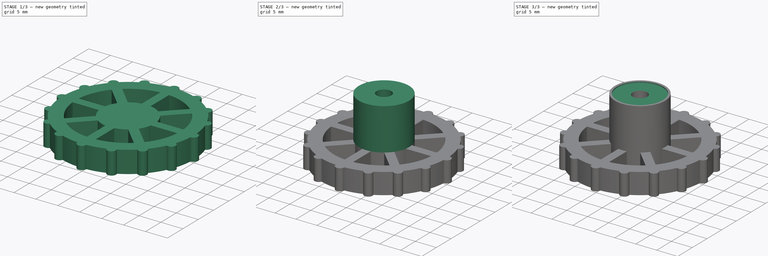
[diagram: build sequence overview — one tinted view per stage of 3, left to right]
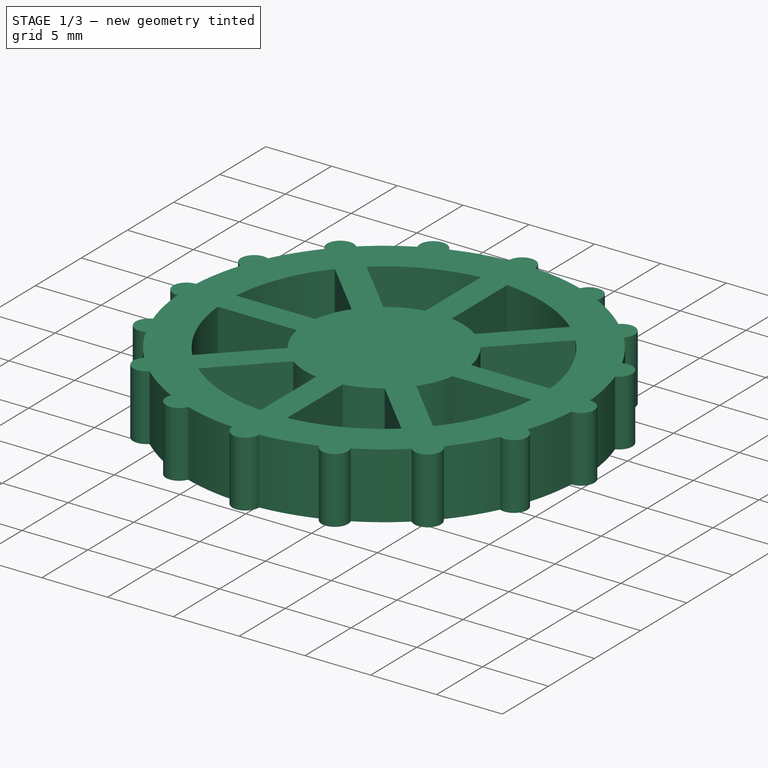
[diagram: stage 1 of 3 — iso view after this stage's code; geometry added in this stage tinted green]
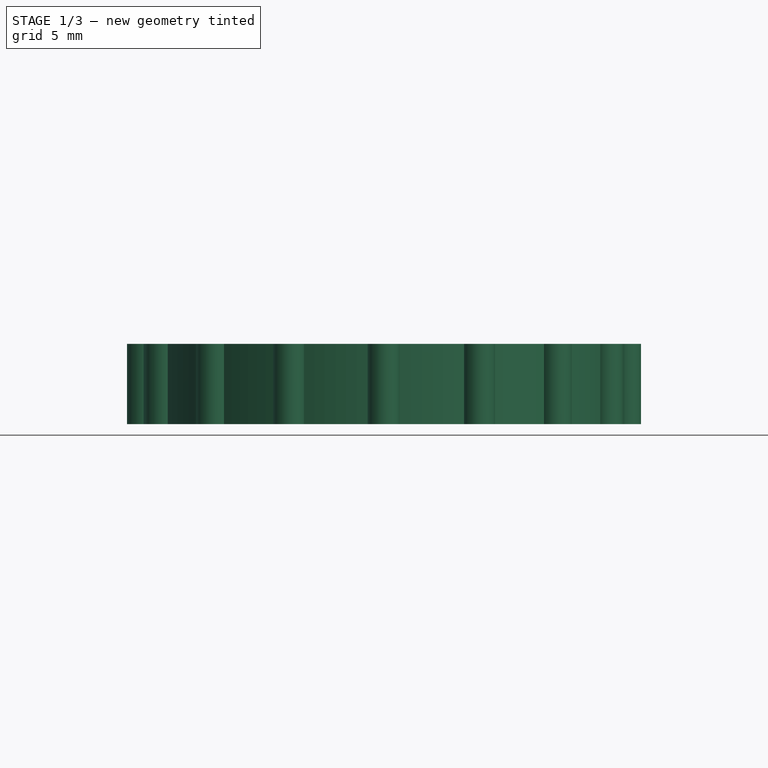
[diagram: stage 1 of 3 — front view after this stage's code; geometry added in this stage tinted green]
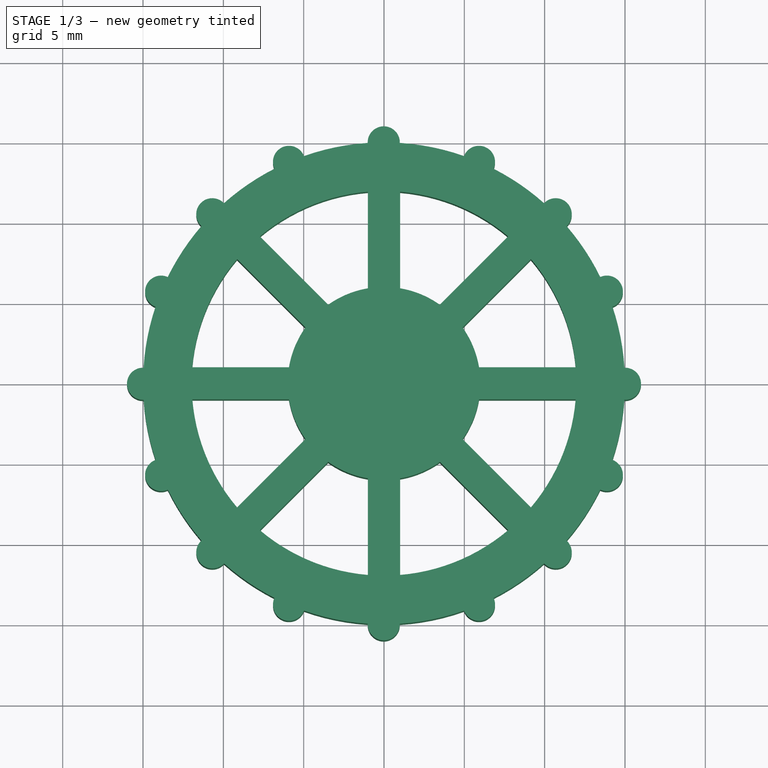
[diagram: stage 1 of 3 — top view after this stage's code; geometry added in this stage tinted green]
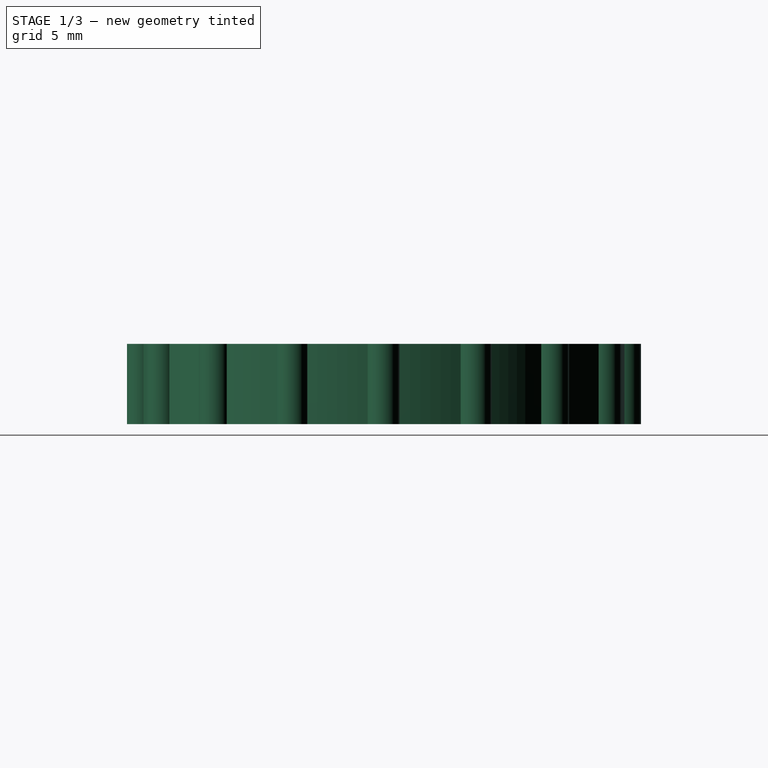
[diagram: stage 1 of 3 — right view after this stage's code; geometry added in this stage tinted green]
FCSTD DOCUMENT  (FreeCAD 0.22R37841 (Git))
Label: Knob
License: All rights reserved
LicenseURL: http://en.wikipedia.org/wiki/All_rights_reserved
objects: Sketcher::SketchObject×7, PartDesign::Pocket×4, PartDesign::Pad×3, Spreadsheet::Sheet×1, PartDesign::Body×1
note: 22 computed .brp shape members not serialized (recipe doc carries the construction recipe); baked Part::Feature solids carry a one-line shape summary decoded from their .brp

FEATURE [Sketcher::SketchObject] Sketch006
  FullyConstrained = false
  sketch-geometry (32):
    g0: ArcOfCircle CenterX=3e-16 CenterY=5e-16 CenterZ=0 NormalX=0 NormalY=0 NormalZ=1 AngleXU=0 Radius=11.9731 StartAngle=2.43981 EndAngle=3.05797
    g1: ArcOfCircle CenterX=3e-16 CenterY=5e-16 CenterZ=0 NormalX=0 NormalY=0 NormalZ=1 AngleXU=0 Radius=11.9731 StartAngle=3.22521 EndAngle=3.84337
    g2: ArcOfCircle CenterX=3e-16 CenterY=5e-16 CenterZ=0 NormalX=0 NormalY=0 NormalZ=1 AngleXU=0 Radius=11.9731 StartAngle=1.65441 EndAngle=2.27258
    g3: ArcOfCircle CenterX=3e-16 CenterY=5e-16 CenterZ=0 NormalX=0 NormalY=0 NormalZ=1 AngleXU=0 Radius=11.9731 StartAngle=0.869016 EndAngle=1.48718
    g4: ArcOfCircle CenterX=3e-16 CenterY=5e-16 CenterZ=0 NormalX=0 NormalY=0 NormalZ=1 AngleXU=0 Radius=11.9731 StartAngle=5.5814 EndAngle=6.19957
    g5: ArcOfCircle CenterX=3e-16 CenterY=5e-16 CenterZ=0 NormalX=0 NormalY=0 NormalZ=1 AngleXU=0 Radius=11.9731 StartAngle=4.79601 EndAngle=5.41417
    g6: ArcOfCircle CenterX=3e-16 CenterY=5e-16 CenterZ=0 NormalX=0 NormalY=0 NormalZ=1 AngleXU=0 Radius=11.9731 StartAngle=4.01061 EndAngle=4.62877
    g7: ArcOfCircle CenterX=3e-16 CenterY=5e-16 CenterZ=0 NormalX=0 NormalY=0 NormalZ=1 AngleXU=0 Radius=11.9731 StartAngle=0.0836178 EndAngle=0.70178
    g8: ArcOfCircle CenterX=3e-16 CenterY=5e-16 CenterZ=0 NormalX=0 NormalY=0 NormalZ=1 AngleXU=0 Radius=6 StartAngle=2.52364 EndAngle=2.97414
    g9: LineSegment StartX=-9.1438 StartY=7.72959 StartZ=0 EndX=-4.89041 EndY=3.4762 EndZ=0
    g10: LineSegment StartX=-7.72958 StartY=9.1438 StartZ=0 EndX=-3.47619 EndY=4.89041 EndZ=0
    g11: LineSegment StartX=-1 StartY=11.9313 StartZ=0 EndX=-1 EndY=5.91608 EndZ=0
    g12: LineSegment StartX=1 StartY=11.9313 StartZ=0 EndX=1 EndY=5.91608 EndZ=0
    g13: LineSegment StartX=7.72959 StartY=9.1438 StartZ=0 EndX=3.47619 EndY=4.89041 EndZ=0
    g14: LineSegment StartX=9.1438 StartY=7.72959 StartZ=0 EndX=4.89041 EndY=3.47619 EndZ=0
    g15: LineSegment StartX=11.9313 StartY=1 StartZ=0 EndX=5.91608 EndY=1 EndZ=0
    g16: LineSegment StartX=11.9313 StartY=-1 StartZ=0 EndX=5.91608 EndY=-1 EndZ=0
    g17: LineSegment StartX=-5.91608 StartY=1 StartZ=0 EndX=-11.9313 EndY=1 EndZ=0
    g18: LineSegment StartX=-5.91608 StartY=-1 StartZ=0 EndX=-11.9313 EndY=-1 EndZ=0
    g19: LineSegment StartX=-4.89041 StartY=-3.47619 StartZ=0 EndX=-9.1438 EndY=-7.72959 EndZ=0
    g20: LineSegment StartX=-3.47619 StartY=-4.89041 StartZ=0 EndX=-7.72959 EndY=-9.1438 EndZ=0
    g21: LineSegment StartX=-1 StartY=-5.91608 StartZ=0 EndX=-1 EndY=-11.9313 EndZ=0
    g22: LineSegment StartX=1 StartY=-5.91608 StartZ=0 EndX=1 EndY=-11.9313 EndZ=0
    g23: LineSegment StartX=3.47619 StartY=-4.89041 StartZ=0 EndX=7.72958 EndY=-9.1438 EndZ=0
    g24: LineSegment StartX=4.89041 StartY=-3.4762 StartZ=0 EndX=9.1438 EndY=-7.72959 EndZ=0
    g25: ArcOfCircle CenterX=3e-16 CenterY=5e-16 CenterZ=0 NormalX=0 NormalY=0 NormalZ=1 AngleXU=0 Radius=6 StartAngle=3.30904 EndAngle=3.75954
    g26: ArcOfCircle CenterX=3e-16 CenterY=5e-16 CenterZ=0 NormalX=0 NormalY=0 NormalZ=1 AngleXU=0 Radius=6 StartAngle=4.09444 EndAngle=4.54494
    g27: ArcOfCircle CenterX=3e-16 CenterY=5e-16 CenterZ=0 NormalX=0 NormalY=0 NormalZ=1 AngleXU=0 Radius=6 StartAngle=4.87984 EndAngle=5.33034
    g28: ArcOfCircle CenterX=3e-16 CenterY=5e-16 CenterZ=0 NormalX=0 NormalY=0 NormalZ=1 AngleXU=0 Radius=6 StartAngle=5.66523 EndAngle=6.11574
    g29: ArcOfCircle CenterX=3e-16 CenterY=5e-16 CenterZ=0 NormalX=0 NormalY=0 NormalZ=1 AngleXU=0 Radius=6 StartAngle=0.167448 EndAngle=0.61795
    g30: ArcOfCircle CenterX=3e-16 CenterY=5e-16 CenterZ=0 NormalX=0 NormalY=0 NormalZ=1 AngleXU=0 Radius=6 StartAngle=1.73824 EndAngle=2.18875
    g31: ArcOfCircle CenterX=3e-16 CenterY=5e-16 CenterZ=0 NormalX=0 NormalY=0 NormalZ=1 AngleXU=0 Radius=6 StartAngle=0.952846 EndAngle=1.40335
  constraints (59):
    c: Equal(g0,g1)
    c: Equal(g1, g2-g6) x5
    c: Equal(g4,g7)
    c: Diameter(g8) = 12
    c: Coincident(g9,g0)
    c: Coincident(g23,g5)
    c: Coincident(g10,g2)
    c: Coincident(g24,g4)
    c: Coincident(g11,g2)
    c: Coincident(g21,g6)
    c: Vertical(g11)
    c: Coincident(g12,g3)
    c: Coincident(g22,g5)
    c: Vertical(g12)
    c: Coincident(g13,g3)
    c: Coincident(g19,g1)
    c: Coincident(g14,g7)
    c: Coincident(g20,g6)
    c: Coincident(g15,g7)
    c: Coincident(g17,g0)
    c: Horizontal(g15)
    c: Coincident(g16,g4)
    c: Coincident(g18,g1)
    c: Horizontal(g16)
    c: PointOnObject(g19,g8)
    c: PointOnObject(g20,g8)
    c: PointOnObject(g21,g8)
    c: PointOnObject(g22,g8)
    c: PointOnObject(g23,g8)
    c: PointOnObject(g24,g8)
    c: PointOnObject(g16,g8)
    c: PointOnObject(g15,g8)
    c: PointOnObject(g14,g8)
    c: PointOnObject(g13,g8)
    c: PointOnObject(g12,g8)
    c: PointOnObject(g11,g8)
    c: Coincident(g30,g10)
    c: Coincident(g8,g9)
    c: Equal(g8,g25)
    c: Coincident(g8,g17)
    c: Coincident(g25,g18)
    c: Equal(g25,g26)
    c: PointOnObject(g25,g19)
    c: PointOnObject(g26,g20)
    c: Equal(g26,g27)
    c: PointOnObject(g26,g21)
    c: PointOnObject(g27,g22)
    c: Equal(g27,g28)
    c: PointOnObject(g27,g23)
    c: PointOnObject(g28,g24)
    c: Equal(g28,g29)
    c: PointOnObject(g28,g16)
    c: PointOnObject(g29,g15)
    c: Equal(g29,g30)
    c: PointOnObject(g31,g12)
    c: PointOnObject(g30,g11)
    c: Equal(g29,g31)
    c: PointOnObject(g29,g14)
    c: PointOnObject(g31,g13)
FEATURE [Sketcher::SketchObject] Sketch002
  ExternalGeometry = -> [Sketch006]
  FullyConstrained = false
  MapMode = 5
  Placement = pos=(0,0,0) rot=(1,0,0;3.14159rad)
  sketch-geometry (32):
    g0: ArcOfCircle CenterX=0 CenterY=0 CenterZ=0 NormalX=0 NormalY=0 NormalZ=1 AngleXU=0 Radius=15 StartAngle=2.04269 EndAngle=2.29721
    g1: ArcOfCircle CenterX=-10.6878 CenterY=10.5247 CenterZ=0 NormalX=0 NormalY=0 NormalZ=1 AngleXU=0 Radius=1 StartAngle=0.759748 EndAngle=3.96802
    g2: ArcOfCircle CenterX=-0.015636 CenterY=15 CenterZ=0 NormalX=0 NormalY=0 NormalZ=1 AngleXU=0 Radius=1 StartAngle=6.25089 EndAngle=9.45916
    g3: ArcOfCircle CenterX=-15 CenterY=0.027811 CenterZ=0 NormalX=0 NormalY=0 NormalZ=1 AngleXU=0 Radius=1 StartAngle=1.5356 EndAngle=4.74387
    g4: ArcOfCircle CenterX=-13.8723 CenterY=5.70615 CenterZ=0 NormalX=0 NormalY=0 NormalZ=1 AngleXU=0 Radius=1 StartAngle=1.14722 EndAngle=4.35549
    g5: ArcOfCircle CenterX=-5.91322 CenterY=13.7853 CenterZ=0 NormalX=0 NormalY=0 NormalZ=1 AngleXU=0 Radius=1 StartAngle=0.371873 EndAngle=3.58014
    g6: ArcOfCircle CenterX=-5.91322 CenterY=-13.7853 CenterZ=0 NormalX=0 NormalY=0 NormalZ=1 AngleXU=0 Radius=1 StartAngle=2.70304 EndAngle=5.91131
    g7: ArcOfCircle CenterX=5.91322 CenterY=13.7853 CenterZ=0 NormalX=0 NormalY=0 NormalZ=1 AngleXU=0 Radius=1 StartAngle=5.84463 EndAngle=9.0529
    g8: ArcOfCircle CenterX=10.6878 CenterY=10.5247 CenterZ=0 NormalX=0 NormalY=0 NormalZ=1 AngleXU=0 Radius=1 StartAngle=5.45676 EndAngle=8.66503
    g9: ArcOfCircle CenterX=13.8723 CenterY=5.70615 CenterZ=0 NormalX=0 NormalY=0 NormalZ=1 AngleXU=0 Radius=1 StartAngle=5.06929 EndAngle=8.27756
    g10: ArcOfCircle CenterX=5.91322 CenterY=-13.7853 CenterZ=0 NormalX=0 NormalY=0 NormalZ=1 AngleXU=0 Radius=1 StartAngle=3.51347 EndAngle=6.72174
    g11: ArcOfCircle CenterX=10.6878 CenterY=-10.5247 CenterZ=0 NormalX=0 NormalY=0 NormalZ=1 AngleXU=0 Radius=1 StartAngle=3.90134 EndAngle=7.10961
    g12: ArcOfCircle CenterX=13.8723 CenterY=-5.70615 CenterZ=0 NormalX=0 NormalY=0 NormalZ=1 AngleXU=0 Radius=1 StartAngle=4.28881 EndAngle=7.49708
    g13: ArcOfCircle CenterX=-0.015636 CenterY=-15 CenterZ=0 NormalX=0 NormalY=0 NormalZ=1 AngleXU=0 Radius=1 StartAngle=3.10721 EndAngle=6.31548
    g14: ArcOfCircle CenterX=15 CenterY=0.027811 CenterZ=0 NormalX=0 NormalY=0 NormalZ=1 AngleXU=0 Radius=1 StartAngle=4.6809 EndAngle=7.88917
    g15: ArcOfCircle CenterX=-13.8723 CenterY=-5.70615 CenterZ=0 NormalX=0 NormalY=0 NormalZ=1 AngleXU=0 Radius=1 StartAngle=1.9277 EndAngle=5.13597
    g16: ArcOfCircle CenterX=-10.6878 CenterY=-10.5247 CenterZ=0 NormalX=0 NormalY=0 NormalZ=1 AngleXU=0 Radius=1 StartAngle=2.31517 EndAngle=5.52344
    g17: ArcOfCircle CenterX=0 CenterY=0 CenterZ=0 NormalX=0 NormalY=0 NormalZ=1 AngleXU=0 Radius=15 StartAngle=2.43056 EndAngle=2.68467
    g18: ArcOfCircle CenterX=0 CenterY=0 CenterZ=0 NormalX=0 NormalY=0 NormalZ=1 AngleXU=0 Radius=15 StartAngle=1.63852 EndAngle=1.90933
    g19: ArcOfCircle CenterX=0 CenterY=0 CenterZ=0 NormalX=0 NormalY=0 NormalZ=1 AngleXU=0 Radius=15 StartAngle=1.23226 EndAngle=1.50516
    g20: ArcOfCircle CenterX=0 CenterY=0 CenterZ=0 NormalX=0 NormalY=0 NormalZ=1 AngleXU=0 Radius=15 StartAngle=0.844388 EndAngle=1.0989
    g21: ArcOfCircle CenterX=0 CenterY=0 CenterZ=0 NormalX=0 NormalY=0 NormalZ=1 AngleXU=0 Radius=15 StartAngle=0.456918 EndAngle=0.71103
    g22: ArcOfCircle CenterX=0 CenterY=0 CenterZ=0 NormalX=0 NormalY=0 NormalZ=1 AngleXU=0 Radius=15 StartAngle=0.0685331 EndAngle=0.32356
    g23: ArcOfCircle CenterX=0 CenterY=0 CenterZ=0 NormalX=0 NormalY=0 NormalZ=1 AngleXU=0 Radius=15 StartAngle=5.95962 EndAngle=6.21836
    g24: ArcOfCircle CenterX=0 CenterY=0 CenterZ=0 NormalX=0 NormalY=0 NormalZ=1 AngleXU=0 Radius=15 StartAngle=5.57216 EndAngle=5.82627
    g25: ArcOfCircle CenterX=0 CenterY=0 CenterZ=0 NormalX=0 NormalY=0 NormalZ=1 AngleXU=0 Radius=15 StartAngle=5.18428 EndAngle=5.4388
    g26: ArcOfCircle CenterX=0 CenterY=0 CenterZ=0 NormalX=0 NormalY=0 NormalZ=1 AngleXU=0 Radius=15 StartAngle=4.77803 EndAngle=5.05092
    g27: ArcOfCircle CenterX=0 CenterY=0 CenterZ=0 NormalX=0 NormalY=0 NormalZ=1 AngleXU=0 Radius=15 StartAngle=4.37386 EndAngle=4.64467
    g28: ArcOfCircle CenterX=0 CenterY=0 CenterZ=0 NormalX=0 NormalY=0 NormalZ=1 AngleXU=0 Radius=15 StartAngle=3.98598 EndAngle=4.2405
    g29: ArcOfCircle CenterX=0 CenterY=0 CenterZ=0 NormalX=0 NormalY=0 NormalZ=1 AngleXU=0 Radius=15 StartAngle=3.59851 EndAngle=3.85262
    g30: ArcOfCircle CenterX=0 CenterY=0 CenterZ=0 NormalX=0 NormalY=0 NormalZ=1 AngleXU=0 Radius=15 StartAngle=3.20642 EndAngle=3.46515
    g31: ArcOfCircle CenterX=0 CenterY=0 CenterZ=0 NormalX=0 NormalY=0 NormalZ=1 AngleXU=0 Radius=15 StartAngle=2.81803 EndAngle=3.07306
  constraints (78):
    c: Diameter(g0) = 30
    c: Coincident(g0,g-1)
    c: PointOnObject(g1,g0)
    c: Diameter(g1) = 2
    c: Diameter(g2) = 2
    c: Diameter(g3) = 2
    c: PointOnObject(g4,g0)
    c: Diameter(g4) = 2
    c: Diameter(g8) = 2
    c: Diameter(g9) = 2
    c: Diameter(g11) = 2
    c: Diameter(g12) = 2
    c: Diameter(g13) = 2
    c: Diameter(g14) = 2
    c: Diameter(g16) = 2
    c: Diameter(g15) = 2
    c: Coincident(g5,g0)
    c: Coincident(g5,g18)
    c: Equal(g0,g17)
    c: Coincident(g0,g17)
    c: Coincident(g1,g17)
    c: Coincident(g1,g0)
    c: Equal(g17,g18)
    c: Coincident(g17,g18)
    c: Coincident(g2,g18)
    c: Coincident(g2,g19)
    c: Equal(g17,g19)
    c: Coincident(g20,g7)
    c: Coincident(g19,g7)
    c: Coincident(g17,g19)
    c: Equal(g17,g20)
    c: Coincident(g17,g20)
    c: Coincident(g8,g20)
    c: Coincident(g8,g21)
    c: Equal(g17,g21)
    c: Coincident(g22,g9)
    c: Coincident(g21,g9)
    c: Coincident(g17,g21)
    c: Equal(g17,g22)
    c: Coincident(g23,g14)
    c: Coincident(g22,g14)
    c: Coincident(g17,g22)
    c: Equal(g17,g23)
    c: Coincident(g24,g12)
    c: Coincident(g23,g12)
    c: Coincident(g17,g23)
    c: Equal(g17,g24)
    c: Coincident(g25,g11)
    c: Coincident(g24,g11)
    c: Coincident(g17,g24)
    c: Equal(g17,g25)
    c: Coincident(g26,g10)
    c: Coincident(g25,g10)
    c: Coincident(g17,g25)
    c: Equal(g17,g26)
    c: Coincident(g27,g13)
    c: Coincident(g26,g13)
    c: Coincident(g17,g26)
    c: Equal(g17,g27)
    c: Coincident(g17,g27)
    c: Coincident(g6,g27)
    c: Coincident(g6,g28)
    c: Equal(g17,g28)
    c: Coincident(g17,g28)
    c: Coincident(g16,g28)
    c: Coincident(g16,g29)
    c: Equal(g17,g29)
    c: Coincident(g17,g29)
    c: Coincident(g15,g29)
    c: Coincident(g15,g30)
    c: Equal(g17,g30)
    c: Coincident(g17,g30)
    c: Coincident(g3,g30)
    c: Coincident(g3,g31)
    c: Equal(g17,g31)
    c: Coincident(g17,g31)
    c: Coincident(g4,g31)
    c: Coincident(g4,g17)
FEATURE [PartDesign::Pad] Pad
  Direction = (0,0,-1)
  Length = 5
  Length2 = 10
  Placement = pos=(0,0,0) rot=(1,0,0;3.14159rad)
  Profile = -> Sketch002
  ReferenceAxis = -> Sketch002 [N_Axis]
  Suppressed = false
  Type = 0
FEATURE [Sketcher::SketchObject] Sketch001
  AttachmentSupport = -> [Pad]
  FullyConstrained = true
  MapMode = 5
  sketch-geometry (1):
    g0: Circle CenterX=0 CenterY=0 CenterZ=0 NormalX=0 NormalY=0 NormalZ=1 AngleXU=0 Radius=6
  constraints (2):
    c: Diameter(g0) = 12
    c: Coincident(g0,g-1)
FEATURE [Sketcher::SketchObject] Sketch007
  AttachmentSupport = -> [Pad]
  FullyConstrained = false
  MapMode = 5
  Placement = pos=(0,0,-5) rot=(1,0,0;3.14159rad)
  sketch-geometry (12):
    g0: LineSegment StartX=-3.3 StartY=-3.3 StartZ=0 EndX=3.3 EndY=-3.3 EndZ=0
    g1: LineSegment StartX=3.3 StartY=-3.3 StartZ=0 EndX=3.3 EndY=3.3 EndZ=0
    g2: LineSegment StartX=3.3 StartY=3.3 StartZ=0 EndX=-3.3 EndY=3.3 EndZ=0
    g3: LineSegment StartX=-3.3 StartY=3.3 StartZ=0 EndX=-3.3 EndY=-3.3 EndZ=0
    g4: GeomPoint X=0 Y=0 Z=0
    g5: LineSegment StartX=3.3 StartY=-1.91897 StartZ=0 EndX=3.31187 EndY=1.8984 EndZ=0
    g6: LineSegment StartX=3.31187 StartY=1.8984 StartZ=0 EndX=0.0118742 EndY=3.81737 EndZ=0
    g7: LineSegment StartX=0.0118742 StartY=3.81737 StartZ=0 EndX=-3.3 EndY=1.91897 EndZ=0
    g8: LineSegment StartX=-3.3 StartY=1.91897 StartZ=0 EndX=-3.31187 EndY=-1.8984 EndZ=0
    g9: LineSegment StartX=-3.31187 StartY=-1.8984 StartZ=0 EndX=-0.0118742 EndY=-3.81737 EndZ=0
    g10: LineSegment StartX=-0.0118742 StartY=-3.81737 StartZ=0 EndX=3.3 EndY=-1.91897 EndZ=0
    g11: Circle CenterX=0 CenterY=0 CenterZ=0 NormalX=0 NormalY=0 NormalZ=1 AngleXU=0 Radius=3.81739
  constraints (27):
    c: Coincident(g0,g1)
    c: Coincident(g1,g2)
    c: Coincident(g2,g3)
    c: Coincident(g3,g0)
    c: Horizontal(g0)
    c: Horizontal(g2)
    c: Vertical(g1)
    c: Vertical(g3)
    c: Symmetric(g2,g0,g4)
    c: Distance(g1,g3) = 6.6
    c: Distance(g0,g2) = 6.6
    c: Coincident(g4,g-1)
    c: Coincident(g5,g6)
    c: Coincident(g6,g7)
    c: Coincident(g7,g8)
    c: Coincident(g8,g9)
    c: Coincident(g9,g10)
    c: Coincident(g10,g5)
    c: Equal(g5, g6-g10) x5
    c: PointOnObject(g5,g11)
    c: PointOnObject(g6,g11)
    c: PointOnObject(g7,g11)
    c: PointOnObject(g8,g11)
    c: PointOnObject(g9,g11)
    c: PointOnObject(g10,g11)
    c: Coincident(g11,g4)
    c: PointOnObject(g10,g1)
FEATURE [PartDesign::Pocket] Pocket
  BaseFeature = -> Pad
  Direction = (0,0,-1)
  Length = 5
  Length2 = 5
  Placement = pos=(0,0,0) rot=(1,0,0;3.14159rad)
  Profile = -> Sketch006
  ReferenceAxis = -> Sketch006 [N_Axis]
  Suppressed = false
  Type = 0
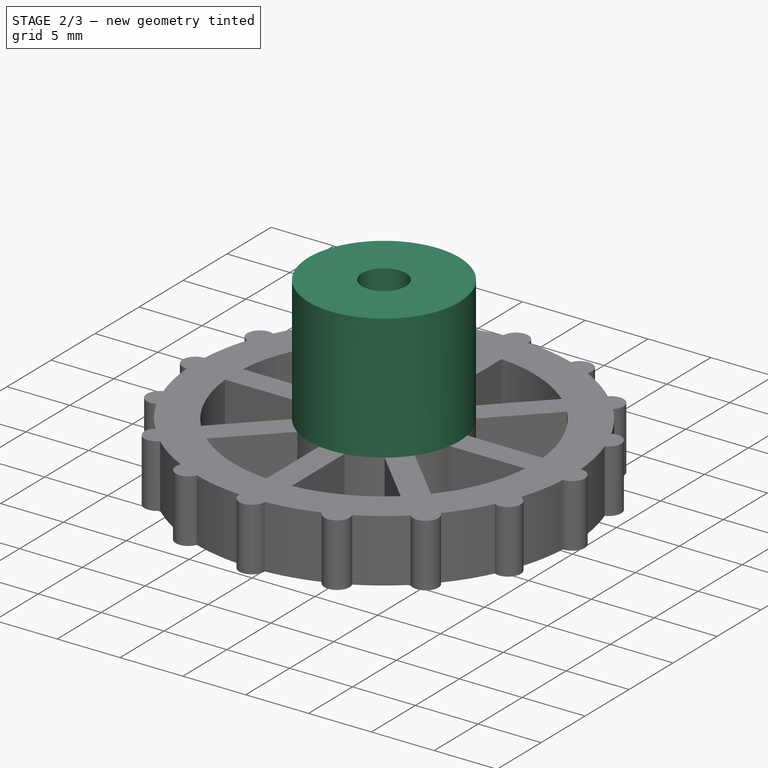
[diagram: stage 2 of 3 — iso view after this stage's code; geometry added in this stage tinted green]
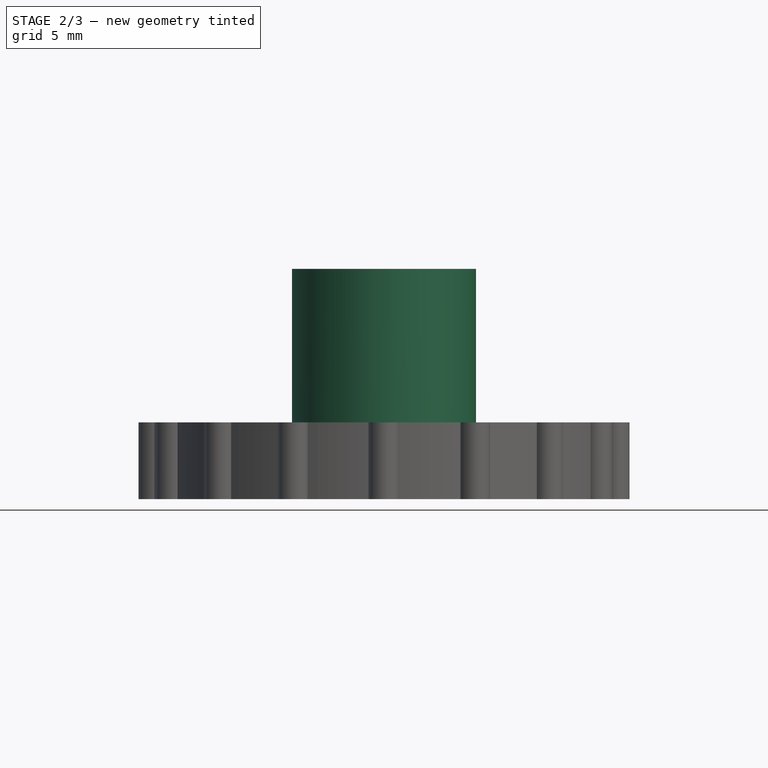
[diagram: stage 2 of 3 — front view after this stage's code; geometry added in this stage tinted green]
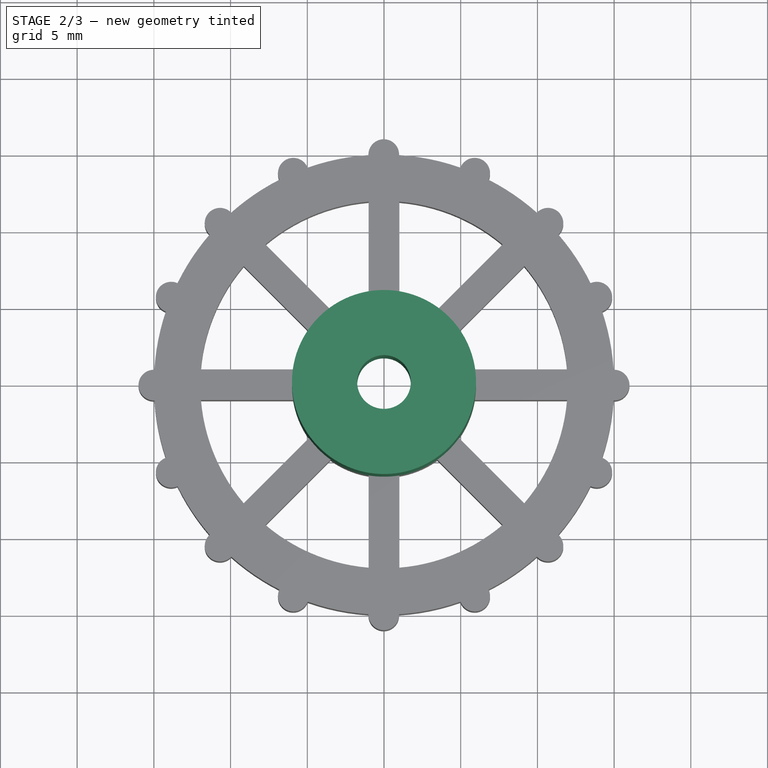
[diagram: stage 2 of 3 — top view after this stage's code; geometry added in this stage tinted green]
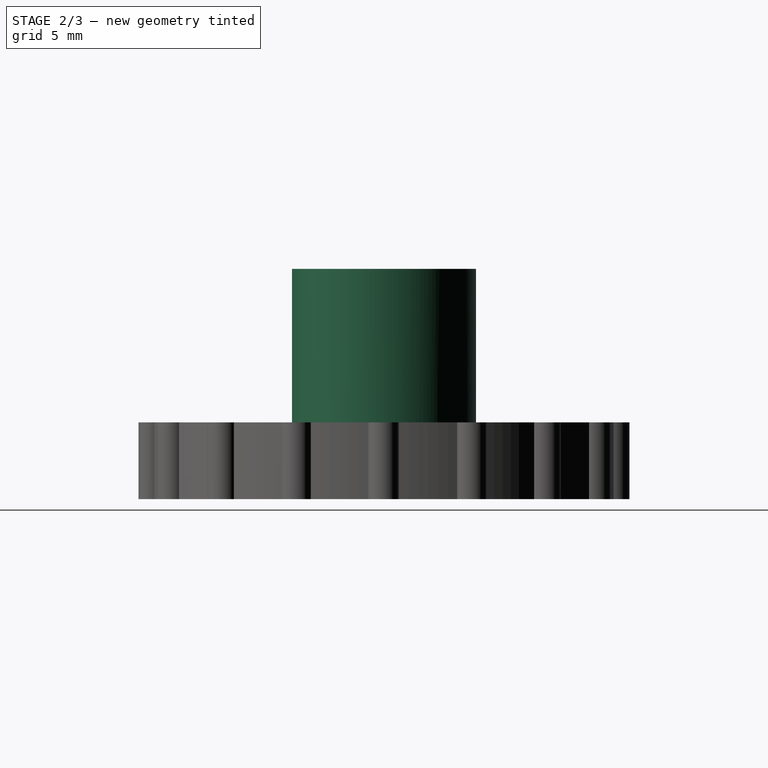
[diagram: stage 2 of 3 — right view after this stage's code; geometry added in this stage tinted green]
FEATURE [PartDesign::Pocket] Pocket001
  BaseFeature = -> Pocket
  Direction = (0,0,1)
  Length = 2.7
  Length2 = 5
  Placement = pos=(0,0,0) rot=(1,0,0;3.14159rad)
  Profile = -> Sketch007
  ReferenceAxis = -> Sketch007 [N_Axis]
  Suppressed = false
  Type = 0
  expr: Length = Spreadsheet.NutHolderDepth
FEATURE [PartDesign::Pad] Pad001
  BaseFeature = -> Pocket001
  Direction = (0,0,1)
  Length = 10
  Length2 = 10
  Placement = pos=(0,0,0) rot=(1,0,0;3.14159rad)
  Profile = -> Sketch001
  ReferenceAxis = -> Sketch001 [N_Axis]
  Suppressed = false
  Type = 0
  expr: Length = Spreadsheet.NeckHeight
FEATURE [Sketcher::SketchObject] Sketch003
  AttachmentSupport = -> [Pad001]
  FullyConstrained = true
  MapMode = 5
  Placement = pos=(0,0,10) rot=(0,0,1;0rad)
  sketch-geometry (1):
    g0: Circle CenterX=0 CenterY=0 CenterZ=0 NormalX=0 NormalY=0 NormalZ=1 AngleXU=0 Radius=1.75
  constraints (2):
    c: Coincident(g0,g-1)
    c: Diameter(g0) = 3.5
FEATURE [PartDesign::Pocket] Pocket002
  BaseFeature = -> Pad001
  Direction = (0,0,-1)
  Length = 5
  Length2 = 5
  Placement = pos=(0,0,0) rot=(1,0,0;3.14159rad)
  Profile = -> Sketch003
  ReferenceAxis = -> Sketch003 [N_Axis]
  Suppressed = false
  Type = 1
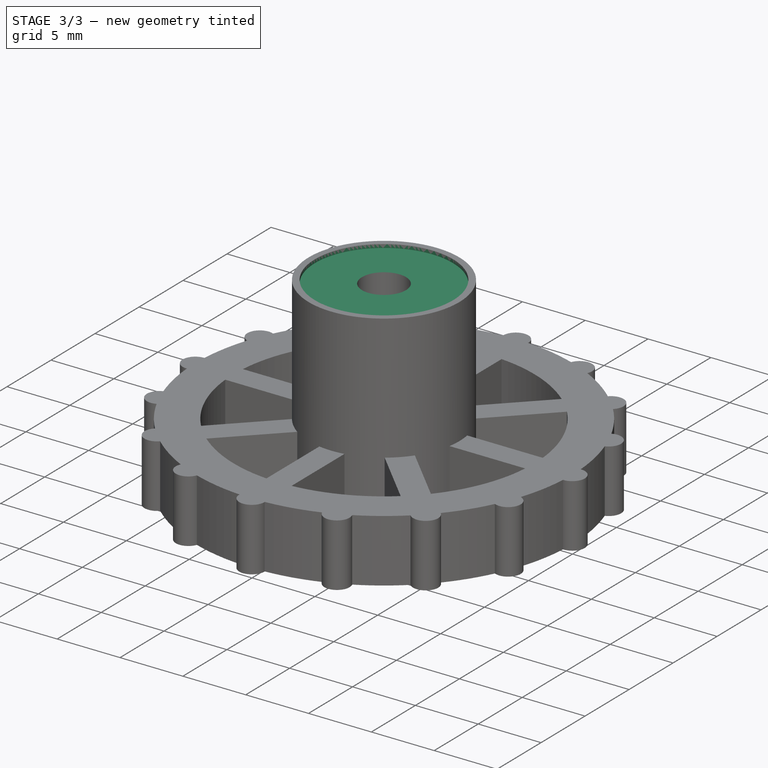
[diagram: stage 3 of 3 — iso view after this stage's code; geometry added in this stage tinted green]
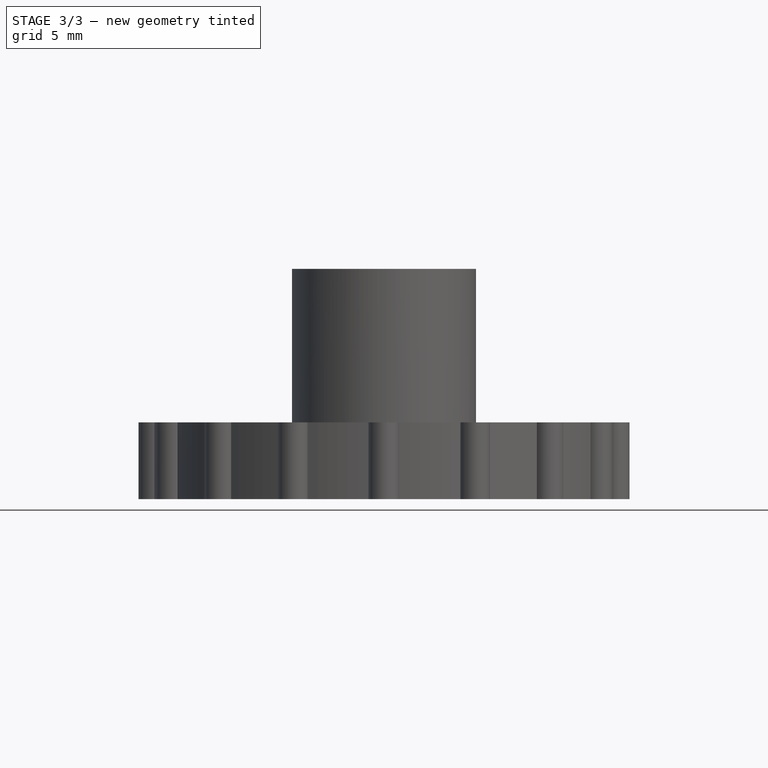
[diagram: stage 3 of 3 — front view after this stage's code; geometry added in this stage tinted green]
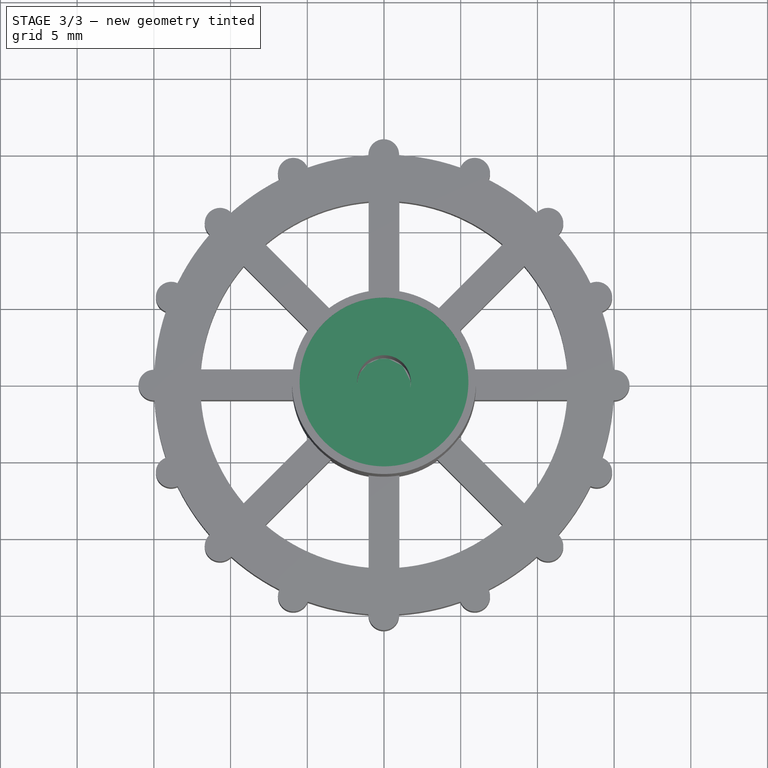
[diagram: stage 3 of 3 — top view after this stage's code; geometry added in this stage tinted green]
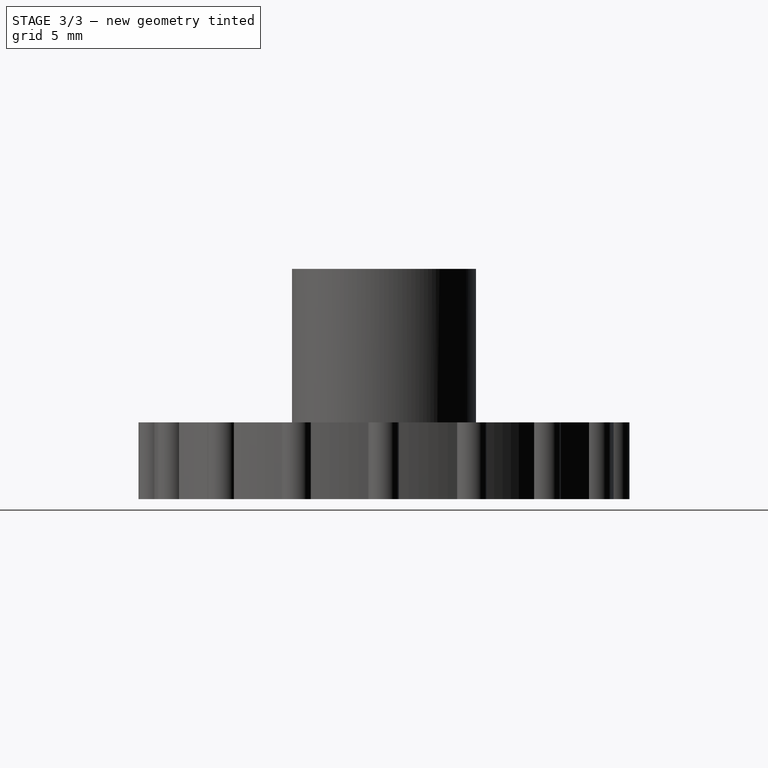
[diagram: stage 3 of 3 — right view after this stage's code; geometry added in this stage tinted green]
FEATURE [Sketcher::SketchObject] Sketch
  AttachmentSupport = -> [Pocket002]
  FullyConstrained = true
  MapMode = 5
  Placement = pos=(0,0,10) rot=(0,0,1;0rad)
  sketch-geometry (1):
    g0: Circle CenterX=0 CenterY=0 CenterZ=0 NormalX=0 NormalY=0 NormalZ=1 AngleXU=0 Radius=5.5
  constraints (2):
    c: Coincident(g0,g-1)
    c: Diameter(g0) = 11
FEATURE [PartDesign::Pocket] Pocket003
  BaseFeature = -> Pocket002
  Direction = (0,0,-1)
  Length = 0.28
  Length2 = 5
  Placement = pos=(0,0,0) rot=(1,0,0;3.14159rad)
  Profile = -> Sketch
  ReferenceAxis = -> Sketch [N_Axis]
  Suppressed = false
  Type = 0
FEATURE [Spreadsheet::Sheet] Spreadsheet
  cells = A1='WheelHeight; B1(WheelHeight)=5; A2='WheelRadius; B2(WheelRadius)=30; A3='NeckHeight; B3(NeckHeight)=10; A4='WasherPocketHeight; B4(WasherPocketHeight)=0.28; A5='CenterHoleDiameter; B5(CenterHoleDiameter)=3.5; A6='NutHolderDepth; B6(NutHolderDepth)=2.7
FEATURE [Sketcher::SketchObject] Sketch008
  AttachmentOffset = pos=(0,0,-2.3) rot=(0,0,1;0rad)
  AttachmentSupport = -> [Pocket003]
  FullyConstrained = false
  MapMode = 5
  Placement = pos=(0,0,-2.3) rot=(0,0,1;0rad)
  sketch-geometry (1):
    g0: Circle CenterX=0 CenterY=0 CenterZ=0 NormalX=0 NormalY=0 NormalZ=1 AngleXU=0 Radius=3.10834
  constraints (1):
    c: Coincident(g0,g-1)
FEATURE [PartDesign::Pad] Pad002
  BaseFeature = -> Pocket003
  Direction = (0,0,1)
  Length = 0.28
  Length2 = 10
  Placement = pos=(0,0,0) rot=(1,0,0;3.14159rad)
  Profile = -> Sketch008
  ReferenceAxis = -> Sketch008 [N_Axis]
  Suppressed = false
  Type = 0
FEATURE [PartDesign::Body] Body
  AllowCompound = false
  Group = -> [Sketch,Sketch001,Sketch002,Sketch003,Sketch006,Sketch007,Pad,Pocket,Pocket001,Pad001,Pocket002,Pocket003,Sketch008,Pad002]
  Origin = -> Origin
  Tip = -> Pad002
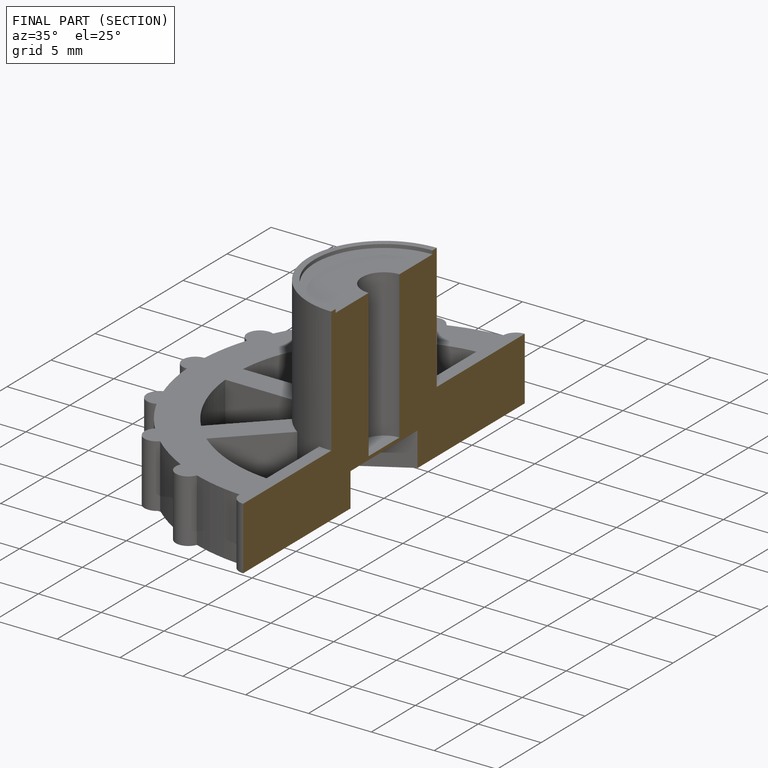
[diagram: finished part — half-section view (interior)]
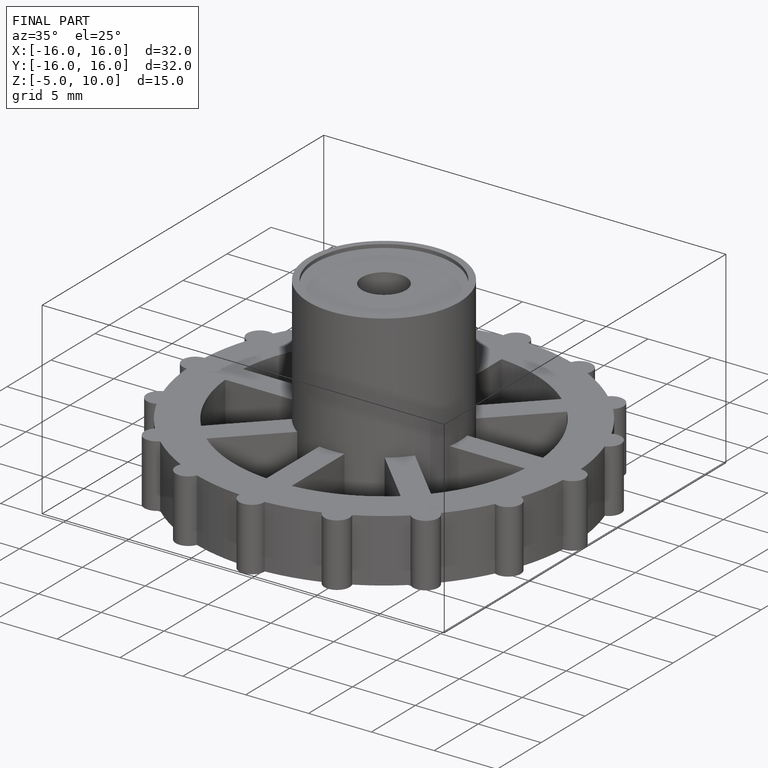
[diagram: finished part — iso view with bounding-box wireframe]
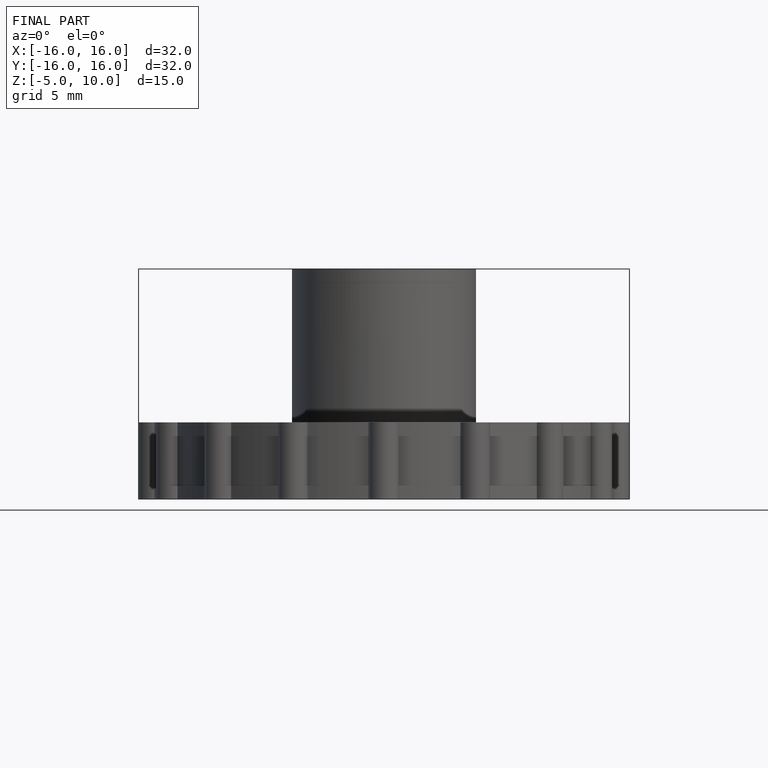
[diagram: finished part — front view with bounding-box wireframe]
